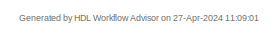
[diagram: root canvas - part 1/2, top right region]
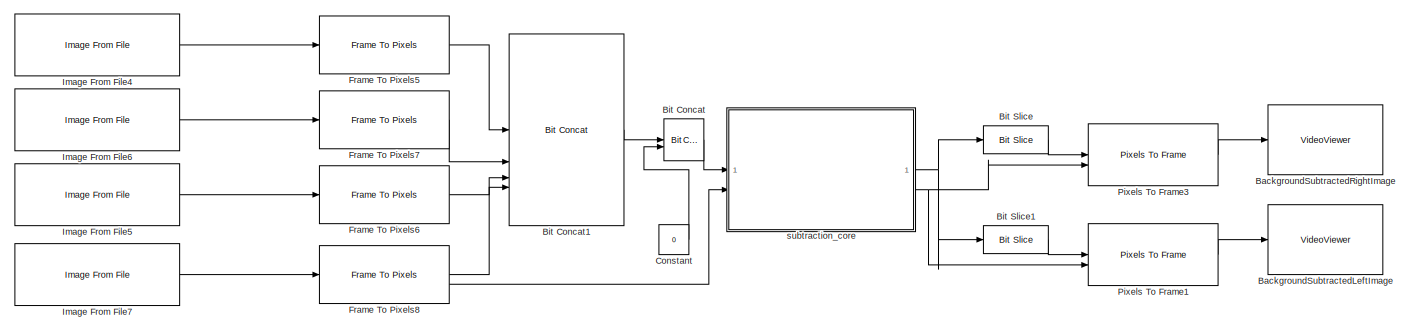
[diagram: root canvas - part 2/2, full width, bottom band]
MODEL slx_70931b098990
KIND model
CONFIG AbsTol = auto
CONFIG EnableMultiTasking = off
CONFIG FixedStep = auto
CONFIG MaxStep = auto
CONFIG MinStep = auto
CONFIG RelTol = 1e-3
CONFIG SampleTimeConstraint = Unconstrained
CONFIG SolverName = VariableStepAuto
CONFIG StartTime = 0.0
CONFIG StopTime = 10.0
BLOCK [VideoViewer] BackgroundSubtractedLeftImage
  FigPos = [1 1078 913 388]
  ScopeSpecificationString = vipscopes.VideoViewerScopeCfg('CurrentConfiguration', extmgr.ConfigurationSet(extmgr.Configuration('Core','General UI',true),extmgr.Configuration('Core','Source UI',true),extmgr.Configuration('Sources','WiredSimulink',true),extmgr.Configuration('Sources','Simulink',false),extmgr.Configuration('Sources','Workspace',false),extmgr.Configuration('Sources','File',false),extmgr.Configuration('Sources','...<+628ch>
  colormapValue = gray(256)
BLOCK [VideoViewer] BackgroundSubtractedRightImage
  FigPos = [1 1078 913 388]
  ScopeSpecificationString = vipscopes.VideoViewerScopeCfg('CurrentConfiguration', extmgr.ConfigurationSet(extmgr.Configuration('Core','General UI',true),extmgr.Configuration('Core','Source UI',true),extmgr.Configuration('Sources','WiredSimulink',true),extmgr.Configuration('Sources','Simulink',false),extmgr.Configuration('Sources','Workspace',false),extmgr.Configuration('Sources','File',false),extmgr.Configuration('Sources','...<+628ch>
  colormapValue = gray(256)
BLOCK [Reference] Bit Concat  REF=hdlsllib/Logic and Bit
Operations/Bit Concat
  SourceBlock = hdlsllib/Logic and Bit\nOperations/Bit Concat
  SourceType = Bit Concat
BLOCK [Reference] Bit Concat1  REF=hdlsllib/Logic and Bit
Operations/Bit Concat
  SourceBlock = hdlsllib/Logic and Bit\nOperations/Bit Concat
  SourceType = Bit Concat
BLOCK [Reference] Bit Slice  REF=hdlsllib/Logic and Bit
Operations/Bit Slice
  SourceBlock = hdlsllib/Logic and Bit\nOperations/Bit Slice
  SourceType = Bit Slice
BLOCK [Reference] Bit Slice1  REF=hdlsllib/Logic and Bit
Operations/Bit Slice
  SourceBlock = hdlsllib/Logic and Bit\nOperations/Bit Slice
  SourceType = Bit Slice
BLOCK [Constant] Constant
  OutDataTypeStr = uint32
  SampleTime = -1
  Value = 0
BLOCK [Reference] Frame To Pixels5  REF=visionhdlio/Frame To Pixels
  SourceBlock = visionhdlio/Frame To Pixels
  SourceType = Frame To Pixels
BLOCK [Reference] Frame To Pixels6  REF=visionhdlio/Frame To Pixels
  SourceBlock = visionhdlio/Frame To Pixels
  SourceType = Frame To Pixels
BLOCK [Reference] Frame To Pixels7  REF=visionhdlio/Frame To Pixels
  SourceBlock = visionhdlio/Frame To Pixels
  SourceType = Frame To Pixels
BLOCK [Reference] Frame To Pixels8  REF=visionhdlio/Frame To Pixels
  SourceBlock = visionhdlio/Frame To Pixels
  SourceType = Frame To Pixels
BLOCK [Reference] Image From File4  REF=visionsources/Image From File
  SourceBlock = visionsources/Image From File
  SourceType = Image From File
  Tag = vipblks_nd
BLOCK [Reference] Image From File5  REF=visionsources/Image From File
  SourceBlock = visionsources/Image From File
  SourceType = Image From File
  Tag = vipblks_nd
BLOCK [Reference] Image From File6  REF=visionsources/Image From File
  SourceBlock = visionsources/Image From File
  SourceType = Image From File
  Tag = vipblks_nd
BLOCK [Reference] Image From File7  REF=visionsources/Image From File
  SourceBlock = visionsources/Image From File
  SourceType = Image From File
  Tag = vipblks_nd
BLOCK [Reference] Pixels To Frame1  REF=visionhdlio/Pixels To Frame
  SourceBlock = visionhdlio/Pixels To Frame
  SourceType = Pixels To Frame
BLOCK [Reference] Pixels To Frame3  REF=visionhdlio/Pixels To Frame
  SourceBlock = visionhdlio/Pixels To Frame
  SourceType = Pixels To Frame
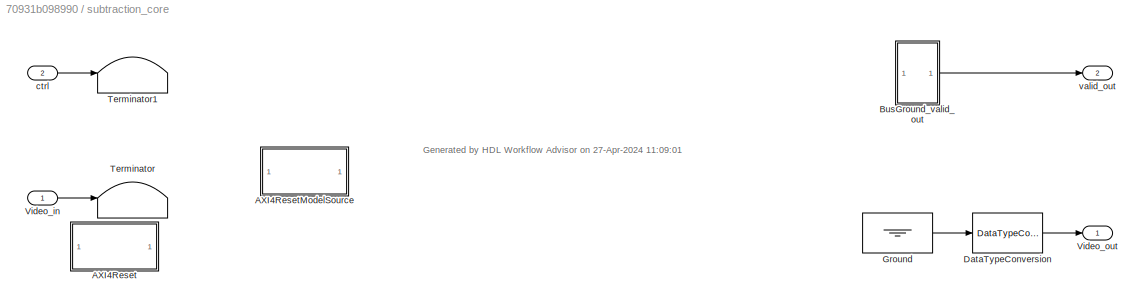
BLOCK [SubSystem] subtraction_core
  TreatAsAtomicUnit = on
BLOCK [SubSystem] subtraction_core/AXI4Reset
  CopyFcn = cccopyfcn(gcb)
  OpenFcn = ccopenfcn('System Start Function')
BLOCK [SubSystem] subtraction_core/AXI4ResetModelSource
  CopyFcn = cccopyfcn(gcb)
  OpenFcn = ccopenfcn('Model Source')
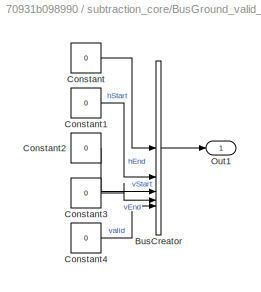
BLOCK [SubSystem] subtraction_core/BusGround_valid_out
BLOCK [BusCreator] subtraction_core/BusGround_valid_out/BusCreator
  DisplayOption = bar
  InheritFromInputs = on
  Inputs = 5
BLOCK [Constant] subtraction_core/BusGround_valid_out/Constant
  OutDataTypeStr = fixdt('boolean')
  SampleTime = -1
  Value = 0
BLOCK [Constant] subtraction_core/BusGround_valid_out/Constant1
  OutDataTypeStr = fixdt('boolean')
  SampleTime = -1
  Value = 0
BLOCK [Constant] subtraction_core/BusGround_valid_out/Constant2
  OutDataTypeStr = fixdt('boolean')
  SampleTime = -1
  Value = 0
BLOCK [Constant] subtraction_core/BusGround_valid_out/Constant3
  OutDataTypeStr = fixdt('boolean')
  SampleTime = -1
  Value = 0
BLOCK [Constant] subtraction_core/BusGround_valid_out/Constant4
  OutDataTypeStr = fixdt('boolean')
  SampleTime = -1
  Value = 0
BLOCK [Outport] subtraction_core/BusGround_valid_out/Out1
BLOCK [DataTypeConversion] subtraction_core/DataTypeConversion
  ConvertRealWorld = Stored Integer (SI)
  OutDataTypeStr = fixdt(0,64,0)
  RndMeth = Floor
  SaturateOnIntegerOverflow = off
BLOCK [Ground] subtraction_core/Ground
BLOCK [Terminator] subtraction_core/Terminator
BLOCK [Terminator] subtraction_core/Terminator1
BLOCK [Inport] subtraction_core/Video_in
BLOCK [Outport] subtraction_core/Video_out
  VectorParamsAs1DForOutWhenUnconnected = off
BLOCK [Inport] subtraction_core/ctrl
  Port = 2
BLOCK [Outport] subtraction_core/valid_out
  Port = 2
  VectorParamsAs1DForOutWhenUnconnected = off
ANNOTATION (root): Generated by HDL Workflow Advisor on 27-Apr-2024 11:09:01
ANNOTATION subtraction_core: Generated by HDL Workflow Advisor on 27-Apr-2024 11:09:01
LINE Bit Concat1:1 -> Bit Concat:1
LINE Bit Concat:1 -> subtraction_core:1
LINE Bit Slice1:1 -> Pixels To Frame1:1
LINE Bit Slice:1 -> Pixels To Frame3:1
LINE Constant:1 -> Bit Concat:2
LINE Frame To Pixels5:1 -> Bit Concat1:1
LINE Frame To Pixels6:1 -> Bit Concat1:3
LINE Frame To Pixels7:1 -> Bit Concat1:2
LINE Frame To Pixels8:1 -> Bit Concat1:4
LINE Frame To Pixels8:2 -> subtraction_core:2
LINE Image From File4:1 -> Frame To Pixels5:1
LINE Image From File5:1 -> Frame To Pixels6:1
LINE Image From File6:1 -> Frame To Pixels7:1
LINE Image From File7:1 -> Frame To Pixels8:1
LINE Pixels To Frame1:1 -> BackgroundSubtractedLeftImage:1
LINE Pixels To Frame3:1 -> BackgroundSubtractedRightImage:1
LINE subtraction_core/BusGround_valid_out/BusCreator:1 -> subtraction_core/BusGround_valid_out/Out1:1
LINE subtraction_core/BusGround_valid_out/Constant1:1 -> subtraction_core/BusGround_valid_out/BusCreator:2
LINE subtraction_core/BusGround_valid_out/Constant2:1 -> subtraction_core/BusGround_valid_out/BusCreator:3
LINE subtraction_core/BusGround_valid_out/Constant3:1 -> subtraction_core/BusGround_valid_out/BusCreator:4
LINE subtraction_core/BusGround_valid_out/Constant4:1 -> subtraction_core/BusGround_valid_out/BusCreator:5
LINE subtraction_core/BusGround_valid_out/Constant:1 -> subtraction_core/BusGround_valid_out/BusCreator:1
LINE subtraction_core/BusGround_valid_out:1 -> subtraction_core/valid_out:1
LINE subtraction_core/DataTypeConversion:1 -> subtraction_core/Video_out:1
LINE subtraction_core/Ground:1 -> subtraction_core/DataTypeConversion:1
LINE subtraction_core/Video_in:1 -> subtraction_core/Terminator:1
LINE subtraction_core/ctrl:1 -> subtraction_core/Terminator1:1
NET subtraction_core:1 -> Bit Slice1:1, Bit Slice:1
NET subtraction_core:2 -> Pixels To Frame1:2, Pixels To Frame3:2
note: NET lines group one-source signal fan-out (src -> all destinations, sorted); 1:1 wires keep LINE
